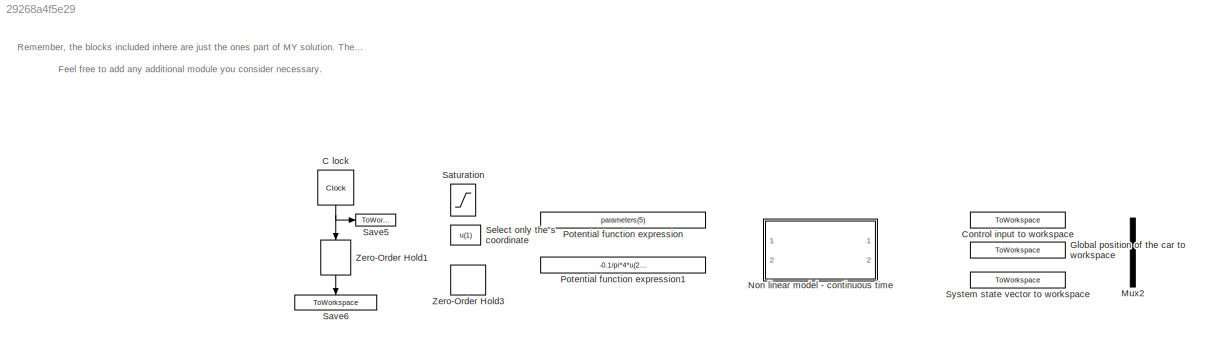
MODEL slx_29268a4f5e29
KIND model
CONFIG AbsTol = auto
CONFIG EnableMultiTasking = on
CONFIG FixedStep = auto
CONFIG MaxStep = 0.01
CONFIG MinStep = auto
CONFIG RelTol = 1e-3
CONFIG SampleTimeConstraint = Unconstrained
CONFIG Solver = ode45
CONFIG SolverName = ode45
CONFIG StartTime = 0.0
CONFIG StopTime = simulation_time
BLOCK [Clock] C lock
  DisplayTime = on
BLOCK [ToWorkspace] Control input to workspace
  MaxDataPoints = inf
  Ports = [1]
  SampleTime = -1
  VariableName = u
BLOCK [ToWorkspace] Global position of the car to workspace
  MaxDataPoints = inf
  Ports = [1]
  SampleTime = -1
  VariableName = global_position
BLOCK [Mux] Mux2
  DisplayOption = bar
  Inputs = 2
  Ports = [2, 1]
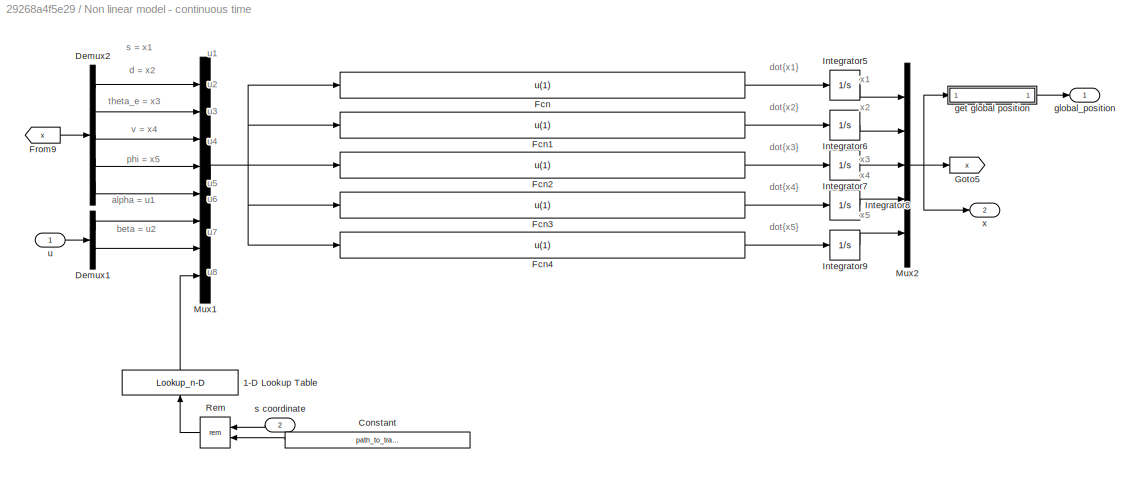
BLOCK [SubSystem] Non linear model - continuous time
  Ports = [2, 2]
  RequestExecContextInheritance = off
BLOCK [Lookup_n-D] Non linear model - continuous time/1-D Lookup Table
  BreakpointsForDimension1 = path_to_track.s_coordinate
  InternalRulePriority = Speed
  NumberOfTableDimensions = 1
  Ports = [1, 1]
  RndMeth = Simplest
  Table = path_to_track.curvature
BLOCK [Constant] Non linear model - continuous time/Constant
  Value = path_to_track.s_coordinate(end)
BLOCK [Demux] Non linear model - continuous time/Demux1
  DisplayOption = bar
  Outputs = 2
  Ports = [1, 2]
BLOCK [Demux] Non linear model - continuous time/Demux2
  DisplayOption = bar
  Outputs = 5
  Ports = [1, 5]
BLOCK [Fcn] Non linear model - continuous time/Fcn
  Expr = u(1)
BLOCK [Fcn] Non linear model - continuous time/Fcn1
  Expr = u(1)
BLOCK [Fcn] Non linear model - continuous time/Fcn2
  Expr = u(1)
BLOCK [Fcn] Non linear model - continuous time/Fcn3
  Expr = u(1)
BLOCK [Fcn] Non linear model - continuous time/Fcn4
  Expr = u(1)
BLOCK [From] Non linear model - continuous time/From9
  GotoTag = x
BLOCK [Goto] Non linear model - continuous time/Goto5
  GotoTag = x
BLOCK [Integrator] Non linear model - continuous time/Integrator5
  InitialCondition = x0(1)
  Ports = [1, 1]
BLOCK [Integrator] Non linear model - continuous time/Integrator6
  InitialCondition = x0(2)
  Ports = [1, 1]
BLOCK [Integrator] Non linear model - continuous time/Integrator7
  InitialCondition = x0(3)
  Ports = [1, 1]
BLOCK [Integrator] Non linear model - continuous time/Integrator8
  InitialCondition = x0(4)
  Ports = [1, 1]
BLOCK [Integrator] Non linear model - continuous time/Integrator9
  InitialCondition = x0(5)
  Ports = [1, 1]
BLOCK [Mux] Non linear model - continuous time/Mux1
  DisplayOption = bar
  Inputs = 8
  Ports = [8, 1]
BLOCK [Mux] Non linear model - continuous time/Mux2
  DisplayOption = bar
  Inputs = 5
  Ports = [5, 1]
BLOCK [Math] Non linear model - continuous time/Rem
  Operator = rem
  Ports = [2, 1]
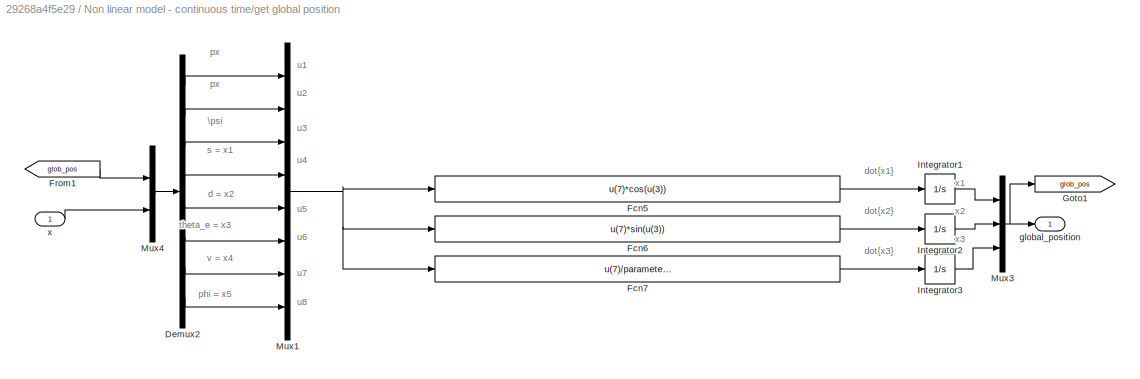
BLOCK [SubSystem] Non linear model - continuous time/get global position
  Ports = [1, 1]
  RequestExecContextInheritance = off
BLOCK [Demux] Non linear model - continuous time/get global position/Demux2
  DisplayOption = bar
  Outputs = 8
  Ports = [1, 8]
BLOCK [Fcn] Non linear model - continuous time/get global position/Fcn5
  Expr = u(7)*cos(u(3))
BLOCK [Fcn] Non linear model - continuous time/get global position/Fcn6
  Expr = u(7)*sin(u(3))
BLOCK [Fcn] Non linear model - continuous time/get global position/Fcn7
  Expr = u(7)/parameters(2)*tan(u(8))
BLOCK [From] Non linear model - continuous time/get global position/From1
  GotoTag = glob_pos
BLOCK [Goto] Non linear model - continuous time/get global position/Goto1
  GotoTag = glob_pos
BLOCK [Integrator] Non linear model - continuous time/get global position/Integrator1
  Ports = [1, 1]
BLOCK [Integrator] Non linear model - continuous time/get global position/Integrator2
  Ports = [1, 1]
BLOCK [Integrator] Non linear model - continuous time/get global position/Integrator3
  Ports = [1, 1]
BLOCK [Mux] Non linear model - continuous time/get global position/Mux1
  DisplayOption = bar
  Inputs = 8
  Ports = [8, 1]
BLOCK [Mux] Non linear model - continuous time/get global position/Mux3
  DisplayOption = bar
  Inputs = 3
  Ports = [3, 1]
BLOCK [Mux] Non linear model - continuous time/get global position/Mux4
  DisplayOption = bar
  Inputs = 2
  Ports = [2, 1]
BLOCK [Outport] Non linear model - continuous time/get global position/global_position
  IconDisplay = Port number
BLOCK [Inport] Non linear model - continuous time/get global position/x
  IconDisplay = Port number
BLOCK [Outport] Non linear model - continuous time/global_position
  IconDisplay = Port number
BLOCK [Inport] Non linear model - continuous time/s coordinate
  IconDisplay = Port number
  Port = 2
BLOCK [Inport] Non linear model - continuous time/u
  IconDisplay = Port number
BLOCK [Outport] Non linear model - continuous time/x
  IconDisplay = Port number
  Port = 2
BLOCK [Fcn] Potential function expression
  Expr = parameters(5)
BLOCK [Fcn] Potential function expression1
  Expr = -0.1/pi*4*u(2) -10/pi*4*u(3)
BLOCK [Saturate] Saturation
  InputPortMap = u0
  LowerLimit = [0;-pi/4]
  Ports = [1, 1]
  UpperLimit = [Inf;pi/4]
BLOCK [ToWorkspace] Save5
  MaxDataPoints = inf
  Ports = [1]
  SampleTime = -1
  VariableName = time
BLOCK [ToWorkspace] Save6
  MaxDataPoints = inf
  Ports = [1]
  SampleTime = -1
  VariableName = discrete_time
BLOCK [Fcn] Select only the s coordinate
  Expr = u(1)
BLOCK [ToWorkspace] System state vector to workspace
  MaxDataPoints = inf
  Ports = [1]
  SampleTime = -1
  VariableName = x
BLOCK [ZeroOrderHold] Zero-Order Hold1
  SampleTime = sampling_time
BLOCK [ZeroOrderHold] Zero-Order Hold3
  SampleTime = sampling_time
ANNOTATION (root): Remember, the blocks included inhere are just the ones part of MY solution. The essencial modules should most probably remain as they are while auxiliary modules like "sum", "mux" and "demux" modules might vary depending on your specific implementation. Feel free to add any additional module you consider necessary.
ANNOTATION Non linear model - continuous time: alpha = u1
ANNOTATION Non linear model - continuous time: beta = u2
ANNOTATION Non linear model - continuous time: d = x2
ANNOTATION Non linear model - continuous time: dot{x1}
ANNOTATION Non linear model - continuous time: dot{x2}
ANNOTATION Non linear model - continuous time: dot{x3}
ANNOTATION Non linear model - continuous time: dot{x4}
ANNOTATION Non linear model - continuous time: dot{x5}
ANNOTATION Non linear model - continuous time: phi = x5
ANNOTATION Non linear model - continuous time: s = x1
ANNOTATION Non linear model - continuous time: theta_e = x3
ANNOTATION Non linear model - continuous time: u1
ANNOTATION Non linear model - continuous time: u2
ANNOTATION Non linear model - continuous time: u3
ANNOTATION Non linear model - continuous time: u4
ANNOTATION Non linear model - continuous time: u5
ANNOTATION Non linear model - continuous time: u6
ANNOTATION Non linear model - continuous time: u7
ANNOTATION Non linear model - continuous time: u8
ANNOTATION Non linear model - continuous time: v = x4
ANNOTATION Non linear model - continuous time: x1
ANNOTATION Non linear model - continuous time: x2
ANNOTATION Non linear model - continuous time: x3
ANNOTATION Non linear model - continuous time: x4
ANNOTATION Non linear model - continuous time: x5
ANNOTATION Non linear model - continuous time/get global position: \psi
ANNOTATION Non linear model - continuous time/get global position: d = x2
ANNOTATION Non linear model - continuous time/get global position: dot{x1}
ANNOTATION Non linear model - continuous time/get global position: dot{x2}
ANNOTATION Non linear model - continuous time/get global position: dot{x3}
ANNOTATION Non linear model - continuous time/get global position: phi = x5
ANNOTATION Non linear model - continuous time/get global position: px
ANNOTATION Non linear model - continuous time/get global position: s = x1
ANNOTATION Non linear model - continuous time/get global position: theta_e = x3
ANNOTATION Non linear model - continuous time/get global position: u1
ANNOTATION Non linear model - continuous time/get global position: u2
ANNOTATION Non linear model - continuous time/get global position: u3
ANNOTATION Non linear model - continuous time/get global position: u4
ANNOTATION Non linear model - continuous time/get global position: u5
ANNOTATION Non linear model - continuous time/get global position: u6
ANNOTATION Non linear model - continuous time/get global position: u7
ANNOTATION Non linear model - continuous time/get global position: u8
ANNOTATION Non linear model - continuous time/get global position: v = x4
ANNOTATION Non linear model - continuous time/get global position: x1
ANNOTATION Non linear model - continuous time/get global position: x2
ANNOTATION Non linear model - continuous time/get global position: x3
NET C lock:1 -> Save5:1, Zero-Order Hold1:1
LINE Non linear model - continuous time/1-D Lookup Table:1 -> Non linear model - continuous time/Mux1:8
LINE Non linear model - continuous time/Constant:1 -> Non linear model - continuous time/Rem:2
LINE Non linear model - continuous time/Demux1:1 -> Non linear model - continuous time/Mux1:6
LINE Non linear model - continuous time/Demux1:2 -> Non linear model - continuous time/Mux1:7
LINE Non linear model - continuous time/Demux2:1 -> Non linear model - continuous time/Mux1:1
LINE Non linear model - continuous time/Demux2:2 -> Non linear model - continuous time/Mux1:2
LINE Non linear model - continuous time/Demux2:3 -> Non linear model - continuous time/Mux1:3
LINE Non linear model - continuous time/Demux2:4 -> Non linear model - continuous time/Mux1:4
LINE Non linear model - continuous time/Demux2:5 -> Non linear model - continuous time/Mux1:5
LINE Non linear model - continuous time/Fcn1:1 -> Non linear model - continuous time/Integrator6:1
LINE Non linear model - continuous time/Fcn2:1 -> Non linear model - continuous time/Integrator7:1
LINE Non linear model - continuous time/Fcn3:1 -> Non linear model - continuous time/Integrator8:1
LINE Non linear model - continuous time/Fcn4:1 -> Non linear model - continuous time/Integrator9:1
LINE Non linear model - continuous time/Fcn:1 -> Non linear model - continuous time/Integrator5:1
LINE Non linear model - continuous time/From9:1 -> Non linear model - continuous time/Demux2:1
LINE Non linear model - continuous time/Integrator5:1 -> Non linear model - continuous time/Mux2:1
LINE Non linear model - continuous time/Integrator6:1 -> Non linear model - continuous time/Mux2:2
LINE Non linear model - continuous time/Integrator7:1 -> Non linear model - continuous time/Mux2:3
LINE Non linear model - continuous time/Integrator8:1 -> Non linear model - continuous time/Mux2:4
LINE Non linear model - continuous time/Integrator9:1 -> Non linear model - continuous time/Mux2:5
NET Non linear model - continuous time/Mux1:1 -> Non linear model - continuous time/Fcn1:1, Non linear model - continuous time/Fcn2:1, Non linear model - continuous time/Fcn3:1, Non linear model - continuous time/Fcn4:1, Non linear model - continuous time/Fcn:1
NET Non linear model - continuous time/Mux2:1 -> Non linear model - continuous time/Goto5:1, Non linear model - continuous time/get global position:1, Non linear model - continuous time/x:1
LINE Non linear model - continuous time/Rem:1 -> Non linear model - continuous time/1-D Lookup Table:1
LINE Non linear model - continuous time/get global position/Demux2:1 -> Non linear model - continuous time/get global position/Mux1:1
LINE Non linear model - continuous time/get global position/Demux2:2 -> Non linear model - continuous time/get global position/Mux1:2
LINE Non linear model - continuous time/get global position/Demux2:3 -> Non linear model - continuous time/get global position/Mux1:3
LINE Non linear model - continuous time/get global position/Demux2:4 -> Non linear model - continuous time/get global position/Mux1:4
LINE Non linear model - continuous time/get global position/Demux2:5 -> Non linear model - continuous time/get global position/Mux1:5
LINE Non linear model - continuous time/get global position/Demux2:6 -> Non linear model - continuous time/get global position/Mux1:6
LINE Non linear model - continuous time/get global position/Demux2:7 -> Non linear model - continuous time/get global position/Mux1:7
LINE Non linear model - continuous time/get global position/Demux2:8 -> Non linear model - continuous time/get global position/Mux1:8
LINE Non linear model - continuous time/get global position/Fcn5:1 -> Non linear model - continuous time/get global position/Integrator1:1
LINE Non linear model - continuous time/get global position/Fcn6:1 -> Non linear model - continuous time/get global position/Integrator2:1
LINE Non linear model - continuous time/get global position/Fcn7:1 -> Non linear model - continuous time/get global position/Integrator3:1
LINE Non linear model - continuous time/get global position/From1:1 -> Non linear model - continuous time/get global position/Mux4:1
LINE Non linear model - continuous time/get global position/Integrator1:1 -> Non linear model - continuous time/get global position/Mux3:1
LINE Non linear model - continuous time/get global position/Integrator2:1 -> Non linear model - continuous time/get global position/Mux3:2
LINE Non linear model - continuous time/get global position/Integrator3:1 -> Non linear model - continuous time/get global position/Mux3:3
NET Non linear model - continuous time/get global position/Mux1:1 -> Non linear model - continuous time/get global position/Fcn5:1, Non linear model - continuous time/get global position/Fcn6:1, Non linear model - continuous time/get global position/Fcn7:1
NET Non linear model - continuous time/get global position/Mux3:1 -> Non linear model - continuous time/get global position/Goto1:1, Non linear model - continuous time/get global position/global_position:1
LINE Non linear model - continuous time/get global position/Mux4:1 -> Non linear model - continuous time/get global position/Demux2:1
LINE Non linear model - continuous time/get global position/x:1 -> Non linear model - continuous time/get global position/Mux4:2
LINE Non linear model - continuous time/get global position:1 -> Non linear model - continuous time/global_position:1
LINE Non linear model - continuous time/s coordinate:1 -> Non linear model - continuous time/Rem:1
LINE Non linear model - continuous time/u:1 -> Non linear model - continuous time/Demux1:1
LINE Zero-Order Hold1:1 -> Save6:1
note: NET lines group one-source signal fan-out (src -> all destinations, sorted); 1:1 wires keep LINE
